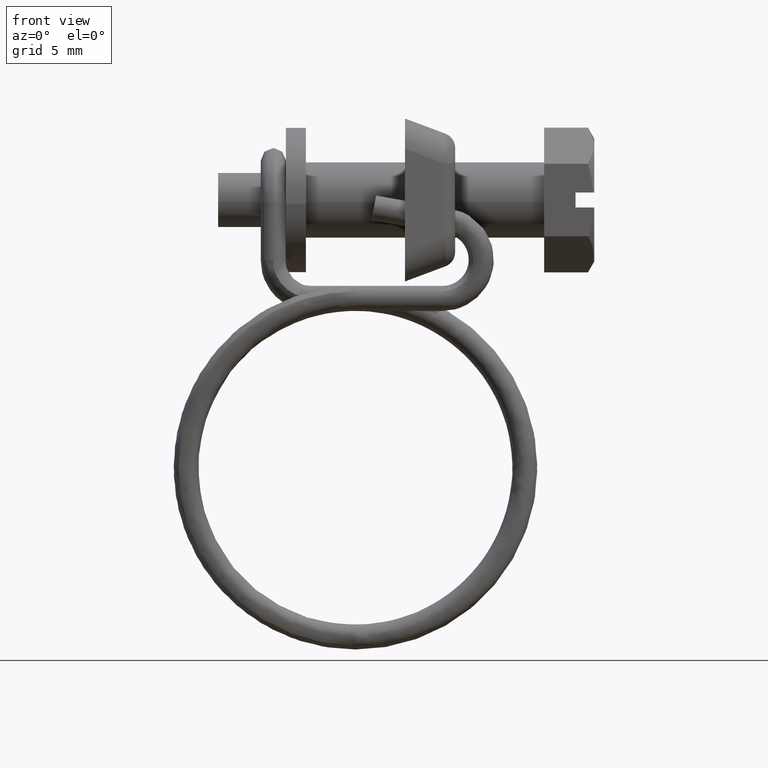
[diagram: clean part render]
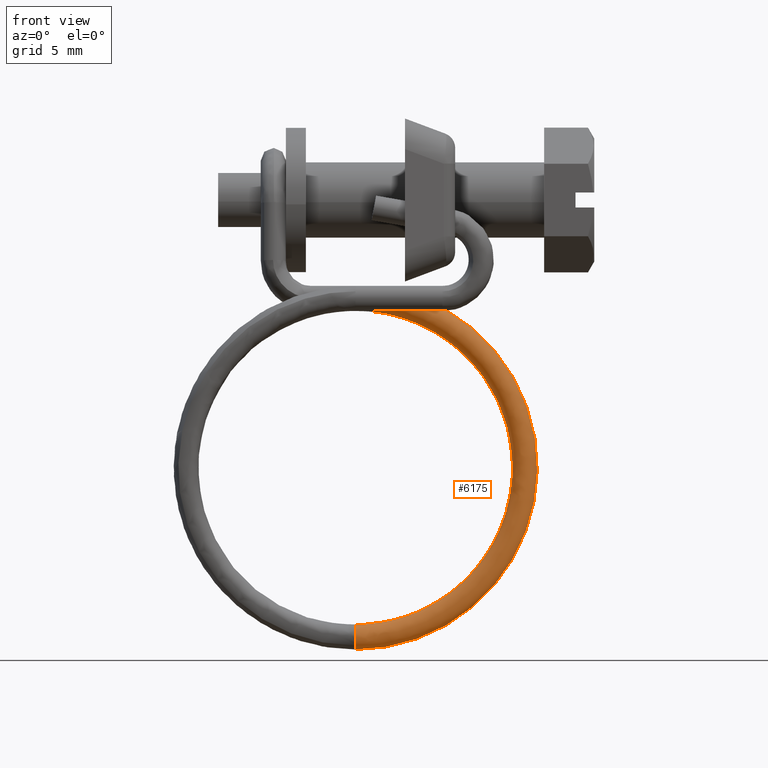
[diagram: same view with one face highlighted and labeled with its STEP entity id]
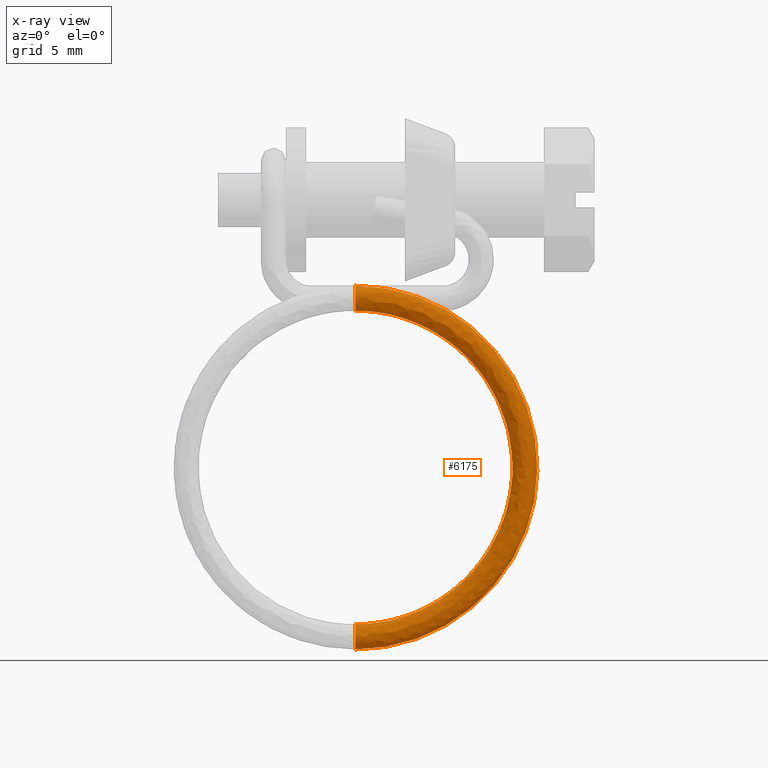
[diagram: x-ray of the same camera — body ghosted, the highlighted face saturated]
A machine part, front view. The second image highlights one B-rep face of the part: STEP entity #6175.
The next image is the same camera in x-ray: the body ghosted, the highlighted face saturated — about 0% of this face is hidden behind the body in this view.
In plain terms, the highlighted face is a freeform B-spline surface patch.
Its self-contained STEP definition (entity closure, byte-faithful):
#4785=CARTESIAN_POINT('',(-15.049998047151400,-3.594625137148729,-8.558833477638085));
#4786=VERTEX_POINT('',#4785);
#4792=CARTESIAN_POINT('',(-15.049998091604539,-4.300002000000000,-8.850001000000319));
#4793=VERTEX_POINT('',#4792);
#4794=CARTESIAN_POINT('',(-15.049998091604539,-4.300002000000000,-8.850001000000319));
#4795=CARTESIAN_POINT('',(-15.049998091604490,-3.887219095906919,-8.850001000000317));
#4796=CARTESIAN_POINT('',(-15.049998047151405,-3.594625137148729,-8.558833477638085));
#4804=(BOUNDED_CURVE()B_SPLINE_CURVE(2,(#4794,#4795,#4796),.UNSPECIFIED.,.F.,.U.)B_SPLINE_CURVE_WITH_KNOTS((3,3),(0.500000000000000,0.624631300939690),.UNSPECIFIED.)CURVE()GEOMETRIC_REPRESENTATION_ITEM()RATIONAL_B_SPLINE_CURVE((1.0,0.853985348411464,0.853554664692807))REPRESENTATION_ITEM(''));
#4805=EDGE_CURVE('',#4793,#4786,#4804,.T.);
#4807=CARTESIAN_POINT('',(-15.049998040185070,-5.048018092815051,-8.513683248905611));
#4808=VERTEX_POINT('',#4807);
#4809=CARTESIAN_POINT('',(-15.049998040185073,-5.048018092815051,-8.513683248905611));
#4810=CARTESIAN_POINT('',(-15.049998091604239,-4.749617560231791,-8.850000648479492));
#4811=CARTESIAN_POINT('',(-15.049998091604539,-4.300002000000000,-8.850001000000319));
#4819=(BOUNDED_CURVE()B_SPLINE_CURVE(2,(#4809,#4810,#4811),.UNSPECIFIED.,.F.,.U.)B_SPLINE_CURVE_WITH_KNOTS((3,3),(0.365993686804297,0.500000000000000),.UNSPECIFIED.)CURVE()GEOMETRIC_REPRESENTATION_ITEM()RATIONAL_B_SPLINE_CURVE((0.854313635267109,0.843001838347148,1.0))REPRESENTATION_ITEM(''));
#4820=EDGE_CURVE('',#4808,#4793,#4819,.T.);
#4870=CARTESIAN_POINT('',(-15.049997785834011,-4.306285019937640,-6.850040477898385));
#4871=VERTEX_POINT('',#4870);
#4872=CARTESIAN_POINT('',(-15.049997785834011,-4.306285019937640,-6.850040477898385));
#4873=CARTESIAN_POINT('',(-15.049997786788023,-5.300001690582857,-6.856284071733888));
#4874=CARTESIAN_POINT('',(-15.049997938717130,-5.300001341732628,-7.850010371521929));
#4875=CARTESIAN_POINT('',(-15.049997996764501,-5.300001208447823,-8.229682232670502));
#4876=CARTESIAN_POINT('',(-15.049998040185073,-5.048018092815051,-8.513683248905611));
#4884=(BOUNDED_CURVE()B_SPLINE_CURVE(2,(#4872,#4873,#4874,#4875,#4876),.UNSPECIFIED.,.F.,.U.)B_SPLINE_CURVE_WITH_KNOTS((3,2,3),(0.001109280886812,0.250000000000000,0.365993686804297),.UNSPECIFIED.)CURVE()GEOMETRIC_REPRESENTATION_ITEM()RATIONAL_B_SPLINE_CURVE((0.997412326205625,0.708406384584574,1.0,0.864104942839400,0.854313635267109))REPRESENTATION_ITEM(''));
#4885=EDGE_CURVE('',#4871,#4808,#4884,.T.);
#4887=CARTESIAN_POINT('',(-15.049997927996429,-3.302436452758481,-7.780265937417491));
#4888=VERTEX_POINT('',#4887);
#4902=CARTESIAN_POINT('',(-15.049998047151407,-3.594625137148728,-8.558833477638085));
#4903=CARTESIAN_POINT('',(-15.049998002390032,-3.300002000000000,-8.265646669413265));
#4904=CARTESIAN_POINT('',(-15.049997938932680,-3.300002000000000,-7.850001000000330));
#4905=CARTESIAN_POINT('',(-15.049997933602906,-3.300001999999999,-7.815090975305924));
#4906=CARTESIAN_POINT('',(-15.049997927996422,-3.302436452758481,-7.780265937417491));
#4914=(BOUNDED_CURVE()B_SPLINE_CURVE(2,(#4902,#4903,#4904,#4905,#4906),.UNSPECIFIED.,.F.,.U.)B_SPLINE_CURVE_WITH_KNOTS((3,2,3),(0.624631300939689,0.750000000000000,0.762166625686409),.UNSPECIFIED.)CURVE()GEOMETRIC_REPRESENTATION_ITEM()RATIONAL_B_SPLINE_CURVE((0.853554664692807,0.853121432775082,1.0,0.985745911362437,0.972879216012507))REPRESENTATION_ITEM(''));
#4915=EDGE_CURVE('',#4786,#4888,#4914,.T.);
#6037=CARTESIAN_POINT('',(-16.969690047332051,-3.303985176576584,-7.894360125288952));
#6038=CARTESIAN_POINT('',(-1.458109725758507,-3.303985176576580,-5.681353205813188));
#6039=CARTESIAN_POINT('',(-1.458109725758507,-3.303985176576585,-21.350000999999999));
#6040=CARTESIAN_POINT('',(-1.458109725758504,-3.303985176576582,-37.018652208470030));
#6041=CARTESIAN_POINT('',(-16.969692949996805,-3.303985176576584,-34.805641460593229));
#6042=CARTESIAN_POINT('',(-16.968118743702995,-3.303207485823418,-7.905373828968369));
#6043=CARTESIAN_POINT('',(-1.469234952220593,-3.303207485823417,-5.694178298684588));
#6044=CARTESIAN_POINT('',(-1.469234952220591,-3.303207485823419,-21.350000999999995));
#6045=CARTESIAN_POINT('',(-1.469234952220589,-3.303207485823418,-37.005827112803964));
#6046=CARTESIAN_POINT('',(-16.968121643991864,-3.303207485823419,-34.794627757252776));
#6047=CARTESIAN_POINT('',(-16.962528303987650,-3.300440590111871,-7.944558774082847));
#6048=CARTESIAN_POINT('',(-1.508816677041979,-3.300440590111870,-5.739807868435314));
#6049=CARTESIAN_POINT('',(-1.508816677041978,-3.300440590111870,-21.350000999999995));
#6050=CARTESIAN_POINT('',(-1.508816677041975,-3.300440590111871,-36.960197533110325));
#6051=CARTESIAN_POINT('',(-16.962531195823502,-3.300440590111871,-34.755442813344267));
#6052=CARTESIAN_POINT('',(-16.958486459005666,-3.300080955796184,-7.972889188476708));
#6053=CARTESIAN_POINT('',(-1.537433960116831,-3.300080955796183,-5.772797696949171));
#6054=CARTESIAN_POINT('',(-1.537433960116829,-3.300080955796184,-21.350000999999999));
#6055=CARTESIAN_POINT('',(-1.537433960116828,-3.300080955796183,-36.927207697407816));
#6056=CARTESIAN_POINT('',(-16.958489344730054,-3.300080955796184,-34.727112399822296));
#6057=CARTESIAN_POINT('',(-16.817259709970354,-3.287514915912833,-8.962786708424389));
#6058=CARTESIAN_POINT('',(-2.537355004320646,-3.287514915912832,-6.925500547509774));
#6059=CARTESIAN_POINT('',(-2.537355004320645,-3.287514915912832,-21.350000999999999));
#6060=CARTESIAN_POINT('',(-2.537355004320643,-3.287514915912833,-35.774504595666997));
#6061=CARTESIAN_POINT('',(-16.817262382153025,-3.287514915912832,-33.737214910340235));
#6062=CARTESIAN_POINT('',(-16.815484908878538,-4.287435960116648,-8.975226782356424));
#6063=CARTESIAN_POINT('',(-2.549921044203999,-4.287435960116646,-6.939986601261479));
#6064=CARTESIAN_POINT('',(-2.549921044203998,-4.287435960116647,-21.350000999999999));
#6065=CARTESIAN_POINT('',(-2.549921044203996,-4.287435960116647,-35.760018538758715));
#6066=CARTESIAN_POINT('',(-16.815487578377621,-4.287435960116647,-33.724774836791049));
#6067=CARTESIAN_POINT('',(-16.813710107786743,-5.287357004320463,-8.987666856288461));
#6068=CARTESIAN_POINT('',(-2.562487084087354,-5.287357004320463,-6.954472655013187));
#6069=CARTESIAN_POINT('',(-2.562487084087351,-5.287357004320464,-21.350000999999999));
#6070=CARTESIAN_POINT('',(-2.562487084087350,-5.287357004320465,-35.745532481850418));
#6071=CARTESIAN_POINT('',(-16.813712774602237,-5.287357004320462,-33.712334763241884));
#6072=CARTESIAN_POINT('',(-16.954936856822066,-5.299923044203815,-7.997769336340781));
#6073=CARTESIAN_POINT('',(-1.562566039883537,-5.299923044203814,-5.801769804452583));
#6074=CARTESIAN_POINT('',(-1.562566039883535,-5.299923044203815,-21.350000999999999));
#6075=CARTESIAN_POINT('',(-1.562566039883532,-5.299923044203815,-36.898235583591216));
#6076=CARTESIAN_POINT('',(-16.954939737179267,-5.299923044203815,-34.702232252723960));
#6077=CARTESIAN_POINT('',(-17.096163605857374,-5.312489084087170,-7.007871816393105));
#6078=CARTESIAN_POINT('',(-0.562644995679721,-5.312489084087170,-4.649066953891982));
#6079=CARTESIAN_POINT('',(-0.562644995679719,-5.312489084087169,-21.350000999999999));
#6080=CARTESIAN_POINT('',(-0.562644995679715,-5.312489084087168,-38.050938685332014));
#6081=CARTESIAN_POINT('',(-17.096166699756317,-5.312489084087170,-35.692129742206028));
#6082=CARTESIAN_POINT('',(-17.097962944661944,-4.298743518651864,-6.995259750815131));
#6083=CARTESIAN_POINT('',(-0.549905222593959,-4.298743518651866,-4.634380621569468));
#6084=CARTESIAN_POINT('',(-0.549905222593959,-4.298743518651866,-21.350000999999995));
#6085=CARTESIAN_POINT('',(-0.549905222593956,-4.298743518651865,-38.065625020854753));
#6086=CARTESIAN_POINT('',(-17.097966041281570,-4.298743518651865,-35.704741807395834));
#6087=CARTESIAN_POINT('',(-17.097987202932018,-4.285076435142344,-6.995089717860751));
#6088=CARTESIAN_POINT('',(-0.549733467916462,-4.285076435142345,-4.634182623830053));
#6089=CARTESIAN_POINT('',(-0.549733467916462,-4.285076435142346,-21.350001000000006));
#6090=CARTESIAN_POINT('',(-0.549733467916458,-4.285076435142345,-38.065823018637310));
#6091=CARTESIAN_POINT('',(-17.097990299588322,-4.285076435142345,-35.704911840344984));
#6099=(BOUNDED_SURFACE()B_SPLINE_SURFACE(2,2,((#6037,#6042,#6047,#6052,#6057,#6062,#6067,#6072,#6077,#6082,#6087),(#6038,#6043,#6048,#6053,#6058,#6063,#6068,#6073,#6078,#6083,#6088),(#6039,#6044,#6049,#6054,#6059,#6064,#6069,#6074,#6079,#6084,#6089),(#6040,#6045,#6050,#6055,#6060,#6065,#6070,#6075,#6080,#6085,#6090),(#6041,#6046,#6051,#6056,#6061,#6066,#6071,#6076,#6081,#6086,#6091)),.UNSPECIFIED.,.F.,.F.,.U.)B_SPLINE_SURFACE_WITH_KNOTS((3,2,3),(3,1,2,2,2,1,3),(0.0,26.469097135095758,52.938198041273978),(0.0,0.025223141768549,0.091497248544270,1.748351498036654,3.405205747529037,5.062059997021420,5.094642012267073),.UNSPECIFIED.)GEOMETRIC_REPRESENTATION_ITEM()RATIONAL_B_SPLINE_SURFACE(((0.965014485327504,0.969098497214187,0.983913299195733,0.995577200505493,0.703979389672153,0.995577200505493,0.703979389672153,0.995577200505493,0.703979389672153,1.001311467307224,1.007045734108955),(0.633749745394983,0.636431820672326,0.646161080830214,0.653821063760796,0.462321307867861,0.653821063760796,0.462321307867861,0.653821063760796,0.462321307867861,0.657586903736131,0.661352743711466),(0.969301511562869,0.973403666458149,0.988284282420452,1.0,0.707106781186548,1.0,0.707106781186548,1.0,0.707106781186548,1.005759740981231,1.011519481962462),(0.633749697588540,0.636431772663563,0.646161032087531,0.653821014440288,0.462321272992995,0.653821014440288,0.462321272992995,0.653821014440288,0.462321272992995,0.657586854131550,0.661352693822811),(0.965014579718848,0.969098592005002,0.983913395435634,0.995577297886280,0.703979458530768,0.995577297886280,0.703979458530768,0.995577297886280,0.703979458530768,1.001311565248899,1.007045832611518)))REPRESENTATION_ITEM('')SURFACE());
#6100=CARTESIAN_POINT('',(-15.049999999998651,-4.300002000000002,-33.850000999999821));
#6101=VERTEX_POINT('',#6100);
#6102=CARTESIAN_POINT('',(-15.049999999859260,-3.302485887071527,-34.919730658453979));
#6103=VERTEX_POINT('',#6102);
#6104=CARTESIAN_POINT('',(-15.049999999998651,-4.300002000000002,-33.850000999999821));
#6105=CARTESIAN_POINT('',(-15.049999999981649,-4.038196562363258,-33.850001438668393));
#6106=CARTESIAN_POINT('',(-15.049999999957230,-3.778000607902762,-33.957775164691519));
#6107=CARTESIAN_POINT('',(-15.049999999907360,-3.407742631726017,-34.328016695221699));
#6108=CARTESIAN_POINT('',(-15.049999999882210,-3.299960596688547,-34.588204614319530));
#6109=CARTESIAN_POINT('',(-15.049999999862330,-3.299953531839392,-34.873276473304003));
#6110=CARTESIAN_POINT('',(-15.049999999860759,-3.300804581636609,-34.896535733891447));
#6111=CARTESIAN_POINT('',(-15.049999999859260,-3.302485887071527,-34.919730658453979));
#6112=B_SPLINE_CURVE_WITH_KNOTS('',3,(#6104,#6105,#6106,#6107,#6108,#6109,#6110,#6111),.UNSPECIFIED.,.F.,.U.,(4,2,2,4),(0.500000000000000,0.625000000000000,0.750000000000000,0.761111541892226),.UNSPECIFIED.);
#6113=EDGE_CURVE('',#6101,#6103,#6112,.T.);
#6114=ORIENTED_EDGE('',*,*,#6113,.F.);
#6115=CARTESIAN_POINT('',(-15.049999999998580,-5.028950059852661,-35.534537663119139));
#6116=VERTEX_POINT('',#6115);
#6117=CARTESIAN_POINT('',(-15.049999999998580,-5.028950059852661,-35.534537663119139));
#6118=CARTESIAN_POINT('',(-15.049999999998491,-5.200678373722746,-35.351169948393363));
#6119=CARTESIAN_POINT('',(-15.049999999998510,-5.300001999999999,-35.101328337190232));
#6120=CARTESIAN_POINT('',(-15.049999999998571,-5.300002000000001,-34.588201612200677));
#6121=CARTESIAN_POINT('',(-15.049999999998590,-5.192228903609815,-34.328014341236539));
#6122=CARTESIAN_POINT('',(-15.049999999998640,-4.821988658763284,-33.957774096390011));
#6123=CARTESIAN_POINT('',(-15.049999999998651,-4.561801387799152,-33.850000999999821));
#6124=CARTESIAN_POINT('',(-15.049999999998651,-4.300002000000002,-33.850000999999821));
#6125=B_SPLINE_CURVE_WITH_KNOTS('',3,(#6117,#6118,#6119,#6120,#6121,#6122,#6123,#6124),.UNSPECIFIED.,.F.,.U.,(4,2,2,4),(0.130000035856071,0.250000000000000,0.375000000000000,0.500000000000000),.UNSPECIFIED.);
#6126=EDGE_CURVE('',#6116,#6101,#6125,.T.);
#6127=ORIENTED_EDGE('',*,*,#6126,.F.);
#6128=CARTESIAN_POINT('',(-15.049999999624671,-4.306285019941679,-35.849961522101772));
#6129=VERTEX_POINT('',#6128);
#6130=CARTESIAN_POINT('',(-15.049999999624671,-4.306285019941679,-35.849961522101772));
#6131=CARTESIAN_POINT('',(-15.049999999737709,-4.565959695528949,-35.848258487161651));
#6132=CARTESIAN_POINT('',(-15.049999999870030,-4.823469649266762,-35.740740414064042));
#6133=CARTESIAN_POINT('',(-15.049999999989319,-5.014513636157694,-35.549702463106897));
#6134=CARTESIAN_POINT('',(-15.049999999993910,-5.021794738658491,-35.542177726812973));
#6135=CARTESIAN_POINT('',(-15.049999999998580,-5.028950059852661,-35.534537663119139));
#6136=B_SPLINE_CURVE_WITH_KNOTS('',3,(#6130,#6131,#6132,#6133,#6134,#6135),.UNSPECIFIED.,.F.,.U.,(4,2,4),(0.001000048621619,0.125000000000000,0.130000035856071),.UNSPECIFIED.);
#6137=EDGE_CURVE('',#6129,#6116,#6136,.T.);
#6138=ORIENTED_EDGE('',*,*,#6137,.F.);
#6139=CARTESIAN_POINT('',(-15.049997785834011,-4.306285019937640,-6.850040477898386));
#6140=CARTESIAN_POINT('',(-0.550078955790331,-4.306285019937639,-6.850042692061015));
#6141=CARTESIAN_POINT('',(-0.550078955793349,-4.306285019939660,-21.350000999996968));
#6142=CARTESIAN_POINT('',(-0.550078955796364,-4.306285019941679,-35.849961521723422));
#6143=CARTESIAN_POINT('',(-15.049999999624676,-4.306285019941679,-35.849961522101765));
#6151=(BOUNDED_CURVE()B_SPLINE_CURVE(2,(#6139,#6140,#6141,#6142,#6143),.UNSPECIFIED.,.F.,.U.)B_SPLINE_CURVE_WITH_KNOTS((3,2,3),(-3.806731531313611,-2.0,-0.193268279660709),.UNSPECIFIED.)CURVE()GEOMETRIC_REPRESENTATION_ITEM()RATIONAL_B_SPLINE_CURVE((0.939171311054324,0.685263253964201,1.0,0.685263221035497,0.939171364183578))REPRESENTATION_ITEM(''));
#6152=EDGE_CURVE('',#4871,#6129,#6151,.T.);
#6153=ORIENTED_EDGE('',*,*,#6152,.F.);
#6154=ORIENTED_EDGE('',*,*,#4885,.T.);
#6155=ORIENTED_EDGE('',*,*,#4820,.T.);
#6156=ORIENTED_EDGE('',*,*,#4805,.T.);
#6157=ORIENTED_EDGE('',*,*,#4915,.T.);
#6158=CARTESIAN_POINT('',(-15.049997927996424,-3.302436452758480,-7.780265937417491));
#6159=CARTESIAN_POINT('',(-1.480266748424466,-3.302436452760369,-7.780268009420405));
#6160=CARTESIAN_POINT('',(-1.480266748424603,-3.302461169913117,-21.349998297935731));
#6161=CARTESIAN_POINT('',(-1.480266748424740,-3.302485887069639,-34.919730658313298));
#6162=CARTESIAN_POINT('',(-15.049999999859253,-3.302485887071528,-34.919730658453979));
#6170=(BOUNDED_CURVE()B_SPLINE_CURVE(2,(#6158,#6159,#6160,#6161,#6162),.UNSPECIFIED.,.F.,.U.)B_SPLINE_CURVE_WITH_KNOTS((3,2,3),(-3.806731531324155,-2.0,-0.193268279641502),.UNSPECIFIED.)CURVE()GEOMETRIC_REPRESENTATION_ITEM()RATIONAL_B_SPLINE_CURVE((0.918045404498863,0.669848805819955,0.977505800795127,0.669848773630481,0.918045456435397))REPRESENTATION_ITEM(''));
#6171=EDGE_CURVE('',#4888,#6103,#6170,.T.);
#6172=ORIENTED_EDGE('',*,*,#6171,.T.);
#6173=EDGE_LOOP('',(#6114,#6127,#6138,#6153,#6154,#6155,#6156,#6157,#6172));
#6174=FACE_OUTER_BOUND('',#6173,.T.);
#6175=ADVANCED_FACE('',(#6174),#6099,.T.);